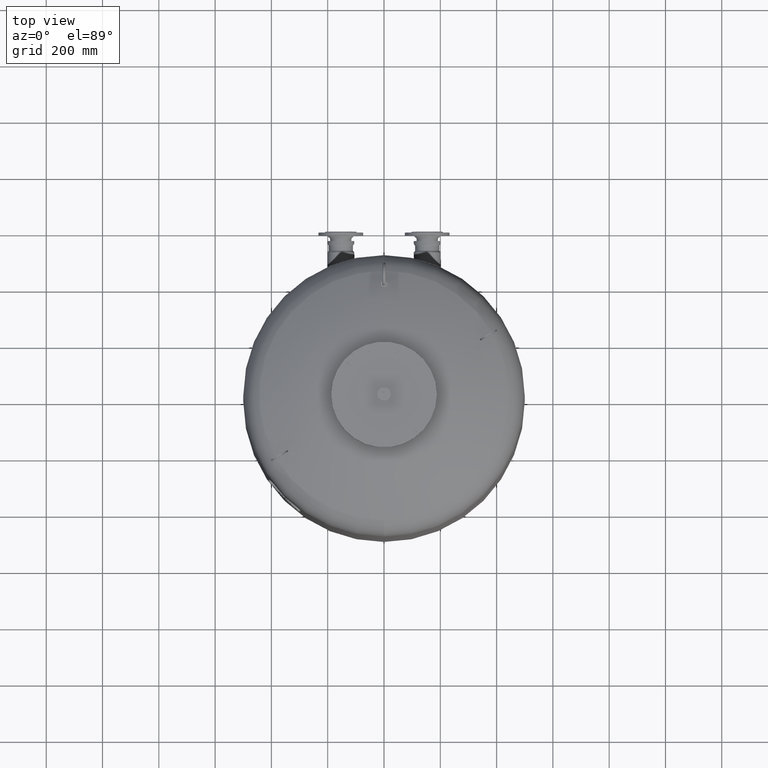
[diagram: clean part render]
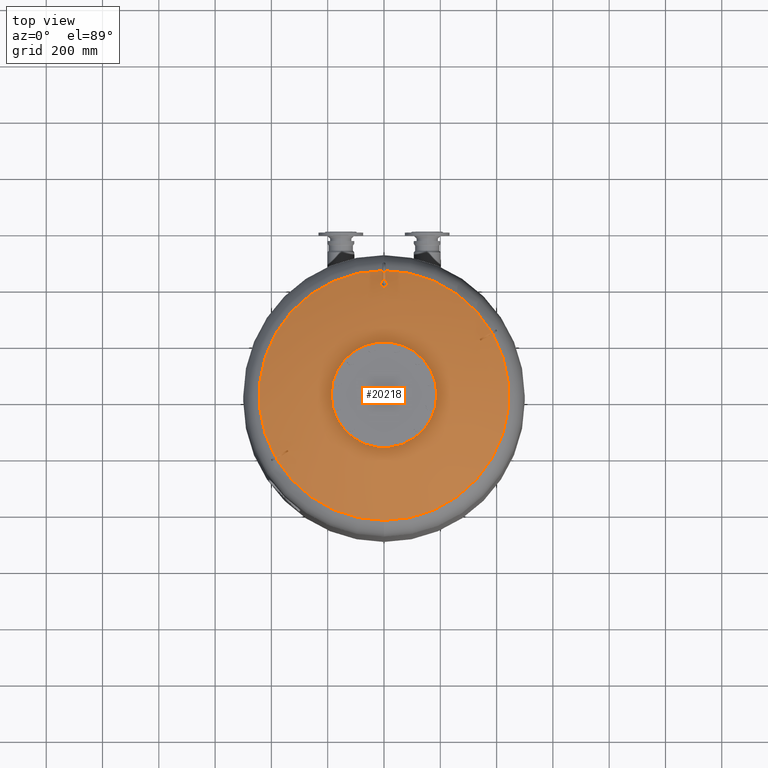
[diagram: same view with one face highlighted and labeled with its STEP entity id]
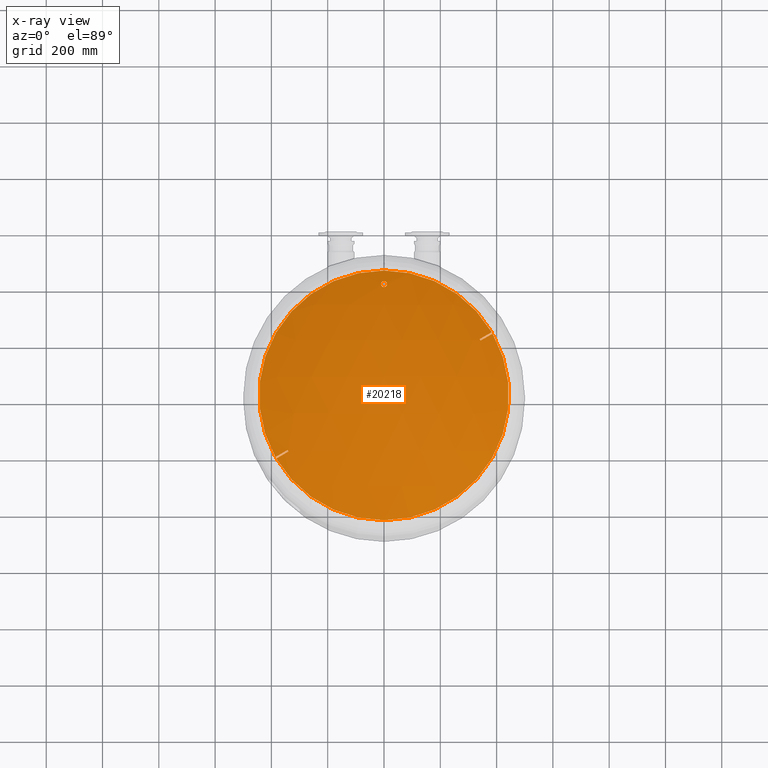
[diagram: x-ray of the same camera — body ghosted, the highlighted face saturated]
A machine part, top view. The second image highlights one B-rep face of the part: STEP entity #20218.
The next image is the same camera in x-ray: the body ghosted, the highlighted face saturated — about 0% of this face is hidden behind the body in this view.
In plain terms, the highlighted spherical surface has radius 1006 mm.
Its self-contained STEP definition (entity closure, byte-faithful):
#19490=CARTESIAN_POINT('',(-2.474646E-014,-443.777777777777600,1836.827383252533800));
#19491=VERTEX_POINT('',#19490);
#19507=CARTESIAN_POINT('',(2.959885E-014,443.777777777777600,1836.827383252533800));
#19508=VERTEX_POINT('',#19507);
#19516=CARTESIAN_POINT('',(382.814047410498800,224.481894937152840,1836.827383252533800));
#19517=VERTEX_POINT('',#19516);
#19518=CARTESIAN_POINT('',(1.205637E-015,-1.895250E-014,1836.827383252533800));
#19519=DIRECTION('',(0.0,0.0,-1.0));
#19520=DIRECTION('',(1.0,0.0,0.0));
#19521=AXIS2_PLACEMENT_3D('',#19518,#19519,#19520);
#19522=CIRCLE('',#19521,443.777777777777600);
#19523=EDGE_CURVE('',#19508,#19517,#19522,.T.);
#19550=CARTESIAN_POINT('',(385.814047410498740,219.285742514446160,1836.827383252533800));
#19551=VERTEX_POINT('',#19550);
#19563=CARTESIAN_POINT('',(1.205637E-015,-1.895250E-014,1836.827383252533800));
#19564=DIRECTION('',(0.0,0.0,-1.0));
#19565=DIRECTION('',(1.0,0.0,0.0));
#19566=AXIS2_PLACEMENT_3D('',#19563,#19564,#19565);
#19567=CIRCLE('',#19566,443.777777777777600);
#19568=EDGE_CURVE('',#19551,#19491,#19567,.T.);
#19622=CARTESIAN_POINT('',(-2.114319E-015,405.649999999999980,1854.588984020556200));
#19623=VERTEX_POINT('',#19622);
#19639=CARTESIAN_POINT('',(-1.177889E-015,384.350000000000020,1863.683321083045000));
#19640=VERTEX_POINT('',#19639);
#19647=CARTESIAN_POINT('',(-2.114319E-015,405.649999999999980,1854.588984020556200));
#19648=CARTESIAN_POINT('',(0.665911592797150,405.649999999999980,1854.588984020556400));
#19649=CARTESIAN_POINT('',(1.352501892994639,405.586496768903370,1854.616232898850500));
#19650=CARTESIAN_POINT('',(2.713616870227710,405.321795323072310,1854.729798811288700));
#19651=CARTESIAN_POINT('',(3.388156219151589,405.120660706391850,1854.816088223712100));
#19652=CARTESIAN_POINT('',(4.677118496836004,404.593327823473370,1855.042269013025400));
#19653=CARTESIAN_POINT('',(5.292718252443163,404.266681241268260,1855.182351663167100));
#19654=CARTESIAN_POINT('',(6.427520590182224,403.518874737441420,1855.502952873024500));
#19655=CARTESIAN_POINT('',(6.946718708499883,403.097708589657370,1855.683472710236900));
#19656=CARTESIAN_POINT('',(7.908589297177660,402.167076661190440,1856.082225431730900));
#19657=CARTESIAN_POINT('',(8.375195247171126,401.618141837792730,1856.317358849592400));
#19658=CARTESIAN_POINT('',(9.191730053175734,400.427319361017170,1856.827210366023300));
#19659=CARTESIAN_POINT('',(9.541744437114126,399.785480792532550,1857.101906129284300));
#19660=CARTESIAN_POINT('',(10.101180573862175,398.451357011695680,1857.672608062775700));
#19661=CARTESIAN_POINT('',(10.310997028739324,397.758168296739940,1857.968999874574100));
#19662=CARTESIAN_POINT('',(10.585436755065578,396.368459275389170,1858.562914493158600));
#19663=CARTESIAN_POINT('',(10.650000000000000,395.671928854453820,1858.860441368647100));
#19664=CARTESIAN_POINT('',(10.650000000000000,394.328470643908080,1859.434042975025200));
#19665=CARTESIAN_POINT('',(10.585512486448454,393.632242428390100,1859.731167120132100));
#19666=CARTESIAN_POINT('',(10.311280290465968,392.242948286479590,1860.323775010502000));
#19667=CARTESIAN_POINT('',(10.101594014471134,391.549872709910860,1860.619263158526100));
#19668=CARTESIAN_POINT('',(9.542402861481900,390.215846098779990,1861.187758697381000));
#19669=CARTESIAN_POINT('',(9.192501053923547,389.573989263622420,1861.461152965227000));
#19670=CARTESIAN_POINT('',(8.376160366441702,388.383081861034670,1861.968214492085100));
#19671=CARTESIAN_POINT('',(7.909636287544291,387.834081206853170,1862.201861809002800));
#19672=CARTESIAN_POINT('',(6.947700117297730,386.903109139287610,1862.597952275997200));
#19673=CARTESIAN_POINT('',(6.428331697669995,386.481719264670800,1862.777177035073200));
#19674=CARTESIAN_POINT('',(5.293206366508434,385.733580979358690,1863.095298570944600));
#19675=CARTESIAN_POINT('',(4.677454669311783,385.406826358996450,1863.234199350034900));
#19676=CARTESIAN_POINT('',(3.388255468701860,384.879363254131590,1863.458386961982800));
#19677=CARTESIAN_POINT('',(2.713633355070818,384.678206448291410,1863.543865327939800));
#19678=CARTESIAN_POINT('',(1.352442942654964,384.413493201343670,1863.656345664296600));
#19679=CARTESIAN_POINT('',(0.665860152353617,384.350000000000020,1863.683321083045000));
#19680=CARTESIAN_POINT('',(-1.177889E-015,384.350000000000020,1863.683321083045000));
#19681=B_SPLINE_CURVE_WITH_KNOTS('',3,(#19647,#19648,#19649,#19650,#19651,#19652,#19653,#19654,#19655,#19656,#19657,#19658,#19659,#19660,#19661,#19662,#19663,#19664,#19665,#19666,#19667,#19668,#19669,#19670,#19671,#19672,#19673,#19674,#19675,#19676,#19677,#19678,#19679,#19680),.UNSPECIFIED.,.F.,.U.,(4,2,2,2,2,2,2,2,2,2,2,2,2,2,2,2,4),(0.0,1.997734778391458,3.995469556782916,5.993204335174374,7.990939113565831,10.182771250369875,12.374603387173920,14.566435523977965,16.758267660782010,18.948796633802456,21.139325606822901,23.329854579843346,25.520383552863791,27.517964009924647,29.515544466985506,31.513124924046366,33.510705381107222),.UNSPECIFIED.);
#19682=EDGE_CURVE('',#19623,#19640,#19681,.T.);
#19693=CARTESIAN_POINT('',(-1.177889E-015,384.350000000000020,1863.683321083045000));
#19694=CARTESIAN_POINT('',(-0.665860152353620,384.350000000000020,1863.683321083045000));
#19695=CARTESIAN_POINT('',(-1.352442942654967,384.413493201343670,1863.656345664296600));
#19696=CARTESIAN_POINT('',(-2.713633355070823,384.678206448291410,1863.543865327939800));
#19697=CARTESIAN_POINT('',(-3.388255468701866,384.879363254131590,1863.458386961982800));
#19698=CARTESIAN_POINT('',(-4.677454669311787,385.406826358996450,1863.234199350034900));
#19699=CARTESIAN_POINT('',(-5.293206366508439,385.733580979358690,1863.095298570944600));
#19700=CARTESIAN_POINT('',(-6.428331697669999,386.481719264670800,1862.777177035073200));
#19701=CARTESIAN_POINT('',(-6.947700117297732,386.903109139287610,1862.597952275997200));
#19702=CARTESIAN_POINT('',(-7.909636287544294,387.834081206853170,1862.201861809002800));
#19703=CARTESIAN_POINT('',(-8.376160366441743,388.383081861034670,1861.968214492085100));
#19704=CARTESIAN_POINT('',(-9.192501053923586,389.573989263622420,1861.461152965227300));
#19705=CARTESIAN_POINT('',(-9.542402861481909,390.215846098779990,1861.187758697381000));
#19706=CARTESIAN_POINT('',(-10.101594014471139,391.549872709910910,1860.619263158526100));
#19707=CARTESIAN_POINT('',(-10.311280290465984,392.242948286479650,1860.323775010502000));
#19708=CARTESIAN_POINT('',(-10.585512486448463,393.632242428390100,1859.731167120132100));
#19709=CARTESIAN_POINT('',(-10.650000000000006,394.328470643908080,1859.434042975025200));
#19710=CARTESIAN_POINT('',(-10.650000000000004,395.671928854453820,1858.860441368647100));
#19711=CARTESIAN_POINT('',(-10.585436755065581,396.368459275389170,1858.562914493158600));
#19712=CARTESIAN_POINT('',(-10.310997028739328,397.758168296739940,1857.968999874574100));
#19713=CARTESIAN_POINT('',(-10.101180573862180,398.451357011695680,1857.672608062775700));
#19714=CARTESIAN_POINT('',(-9.541744437114129,399.785480792532550,1857.101906129284300));
#19715=CARTESIAN_POINT('',(-9.191730053175737,400.427319361017170,1856.827210366023300));
#19716=CARTESIAN_POINT('',(-8.375195247171130,401.618141837792730,1856.317358849592400));
#19717=CARTESIAN_POINT('',(-7.908589297177668,402.167076661190440,1856.082225431730900));
#19718=CARTESIAN_POINT('',(-6.946718708499890,403.097708589657370,1855.683472710236900));
#19719=CARTESIAN_POINT('',(-6.427520590182228,403.518874737441420,1855.502952873024500));
#19720=CARTESIAN_POINT('',(-5.292718252443166,404.266681241268260,1855.182351663167100));
#19721=CARTESIAN_POINT('',(-4.677118496836009,404.593327823473370,1855.042269013025400));
#19722=CARTESIAN_POINT('',(-3.388156219151597,405.120660706391850,1854.816088223712100));
#19723=CARTESIAN_POINT('',(-2.713616870227719,405.321795323072310,1854.729798811288700));
#19724=CARTESIAN_POINT('',(-1.352501892994647,405.586496768903370,1854.616232898850500));
#19725=CARTESIAN_POINT('',(-0.665911592797156,405.649999999999980,1854.588984020556400));
#19726=CARTESIAN_POINT('',(-2.114319E-015,405.649999999999980,1854.588984020556400));
#19727=B_SPLINE_CURVE_WITH_KNOTS('',3,(#19693,#19694,#19695,#19696,#19697,#19698,#19699,#19700,#19701,#19702,#19703,#19704,#19705,#19706,#19707,#19708,#19709,#19710,#19711,#19712,#19713,#19714,#19715,#19716,#19717,#19718,#19719,#19720,#19721,#19722,#19723,#19724,#19725,#19726),.UNSPECIFIED.,.F.,.U.,(4,2,2,2,2,2,2,2,2,2,2,2,2,2,2,2,4),(33.510705381107222,35.508285838168078,37.505866295228941,39.503446752289797,41.501027209350653,43.691556182371102,45.882085155391543,48.072614128411985,50.263143101432433,52.454975238236479,54.646807375040524,56.838639511844569,59.030471648648614,61.028206427040075,63.025941205431529,65.023675983822983,67.021410762214444),.UNSPECIFIED.);
#19728=EDGE_CURVE('',#19640,#19623,#19727,.T.);
#19756=CARTESIAN_POINT('',(-382.814047410493060,-224.481894937162560,1836.827383252533800));
#19757=VERTEX_POINT('',#19756);
#19771=CARTESIAN_POINT('',(-339.751865728368670,-199.619932751095800,1859.611447737408100));
#19772=VERTEX_POINT('',#19771);
#19773=CARTESIAN_POINT('',(1.500000000004920,-2.598076211361895,933.999999999999890));
#19774=DIRECTION('',(0.499999999999994,-0.866025403784442,0.0));
#19775=DIRECTION('',(0.0,0.0,1.0));
#19776=AXIS2_PLACEMENT_3D('',#19773,#19774,#19775);
#19777=CIRCLE('',#19776,1005.995526829021300);
#19778=EDGE_CURVE('',#19772,#19757,#19777,.T.);
#19821=CARTESIAN_POINT('',(-342.751865728368730,-194.423780328389170,1859.611447737407800));
#19822=VERTEX_POINT('',#19821);
#19823=CARTESIAN_POINT('',(-110.683197430719060,-63.902973831393346,898.593010303164870));
#19824=DIRECTION('',(0.834590199910602,0.481850876581402,0.266981143436977));
#19825=DIRECTION('',(0.0,0.484652475916135,-0.874706795211035));
#19826=AXIS2_PLACEMENT_3D('',#19823,#19824,#19825);
#19827=CIRCLE('',#19826,997.220128568725390);
#19828=EDGE_CURVE('',#19822,#19772,#19827,.T.);
#19906=CARTESIAN_POINT('',(-385.814047410493120,-219.285742514455960,1836.827383252533800));
#19907=VERTEX_POINT('',#19906);
#19928=CARTESIAN_POINT('',(-1.499999999995070,2.598076211344809,933.999999999999890));
#19929=DIRECTION('',(-0.499999999999994,0.866025403784442,0.0));
#19930=DIRECTION('',(0.0,0.0,-1.0));
#19931=AXIS2_PLACEMENT_3D('',#19928,#19929,#19930);
#19932=CIRCLE('',#19931,1005.995526829021300);
#19933=EDGE_CURVE('',#19907,#19822,#19932,.T.);
#19960=CARTESIAN_POINT('',(1.205637E-015,-1.895250E-014,1836.827383252533800));
#19961=DIRECTION('',(0.0,0.0,-1.0));
#19962=DIRECTION('',(1.0,0.0,0.0));
#19963=AXIS2_PLACEMENT_3D('',#19960,#19961,#19962);
#19964=CIRCLE('',#19963,443.777777777777600);
#19965=EDGE_CURVE('',#19491,#19757,#19964,.T.);
#19970=CARTESIAN_POINT('',(1.205637E-015,-1.895250E-014,1836.827383252533800));
#19971=DIRECTION('',(0.0,0.0,-1.0));
#19972=DIRECTION('',(1.0,0.0,0.0));
#19973=AXIS2_PLACEMENT_3D('',#19970,#19971,#19972);
#19974=CIRCLE('',#19973,443.777777777777600);
#19975=EDGE_CURVE('',#19907,#19508,#19974,.T.);
#19995=CARTESIAN_POINT('',(339.751865728374580,199.619932751085570,1859.611447737407800));
#19996=VERTEX_POINT('',#19995);
#19997=CARTESIAN_POINT('',(-1.499999999995094,2.598076211344762,933.999999999999890));
#19998=DIRECTION('',(-0.500000000000006,0.866025403784435,0.0));
#19999=DIRECTION('',(0.0,0.0,-1.0));
#20000=AXIS2_PLACEMENT_3D('',#19997,#19998,#19999);
#20001=CIRCLE('',#20000,1005.995526829021500);
#20002=EDGE_CURVE('',#19996,#19517,#20001,.T.);
#20045=CARTESIAN_POINT('',(342.751865728374640,194.423780328378940,1859.611447737408100));
#20046=VERTEX_POINT('',#20045);
#20047=CARTESIAN_POINT('',(110.683197430718480,63.902973831394576,898.593010303164870));
#20048=DIRECTION('',(-0.834590199910595,-0.481850876581413,0.266981143436977));
#20049=DIRECTION('',(0.0,0.484652475916126,0.874706795211040));
#20050=AXIS2_PLACEMENT_3D('',#20047,#20048,#20049);
#20051=CIRCLE('',#20050,997.220128568725610);
#20052=EDGE_CURVE('',#20046,#19996,#20051,.T.);
#20183=CARTESIAN_POINT('',(1.500000000004958,-2.598076211361873,933.999999999999890));
#20184=DIRECTION('',(0.500000000000006,-0.866025403784435,0.0));
#20185=DIRECTION('',(0.0,0.0,1.0));
#20186=AXIS2_PLACEMENT_3D('',#20183,#20184,#20185);
#20187=CIRCLE('',#20186,1005.995526829021500);
#20188=EDGE_CURVE('',#19551,#20046,#20187,.T.);
#20197=CARTESIAN_POINT('',(9.910502E-014,-1.847992E-013,933.999999999999890));
#20198=DIRECTION('',(0.0,-1.0,0.0));
#20199=DIRECTION('',(-1.0,0.0,0.0));
#20200=AXIS2_PLACEMENT_3D('',#20197,#20198,#20199);
#20201=SPHERICAL_SURFACE('',#20200,1006.000000000000100);
#20202=ORIENTED_EDGE('',*,*,#19682,.T.);
#20203=ORIENTED_EDGE('',*,*,#19728,.T.);
#20204=EDGE_LOOP('',(#20202,#20203));
#20205=FACE_OUTER_BOUND('',#20204,.T.);
#20206=ORIENTED_EDGE('',*,*,#19778,.T.);
#20207=ORIENTED_EDGE('',*,*,#19965,.F.);
#20208=ORIENTED_EDGE('',*,*,#19568,.F.);
#20209=ORIENTED_EDGE('',*,*,#20188,.T.);
#20210=ORIENTED_EDGE('',*,*,#20052,.T.);
#20211=ORIENTED_EDGE('',*,*,#20002,.T.);
#20212=ORIENTED_EDGE('',*,*,#19523,.F.);
#20213=ORIENTED_EDGE('',*,*,#19975,.F.);
#20214=ORIENTED_EDGE('',*,*,#19933,.T.);
#20215=ORIENTED_EDGE('',*,*,#19828,.T.);
#20216=EDGE_LOOP('',(#20206,#20207,#20208,#20209,#20210,#20211,#20212,#20213,#20214,#20215));
#20217=FACE_BOUND('',#20216,.T.);
#20218=ADVANCED_FACE('',(#20205,#20217),#20201,.T.);